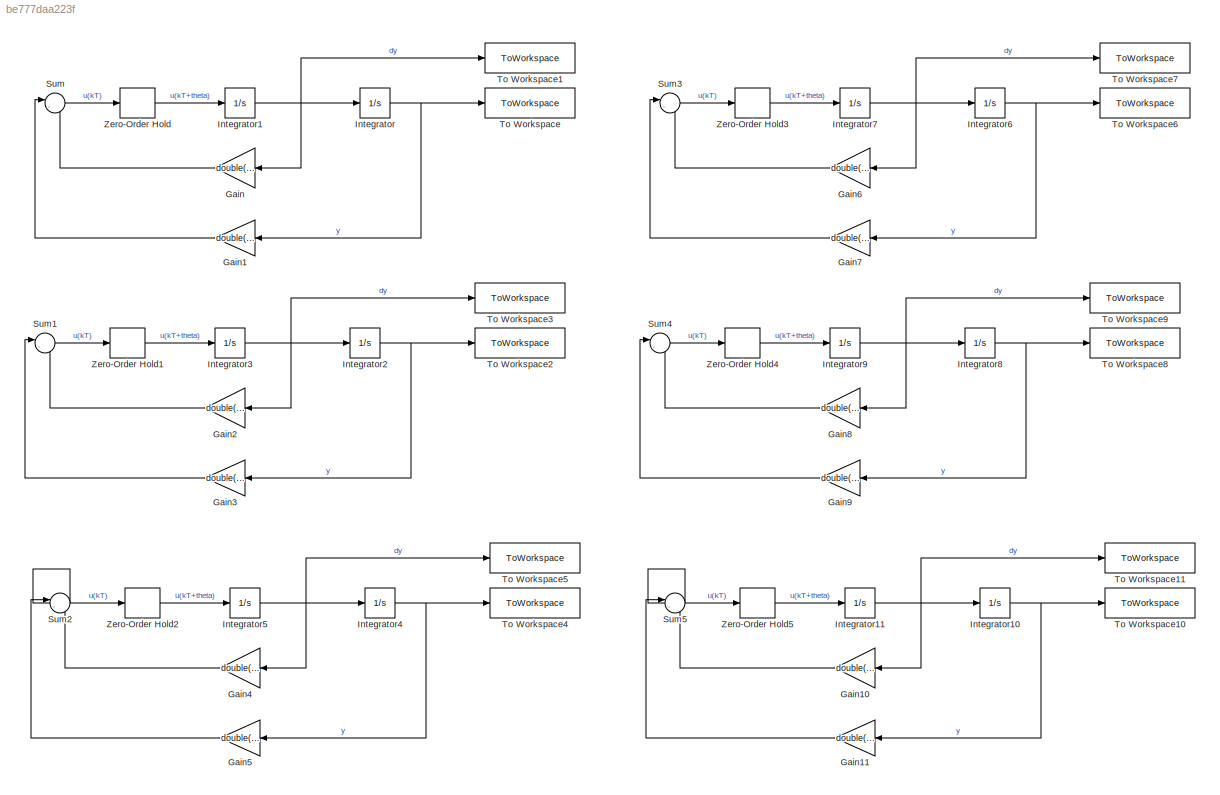
MODEL slx_be777daa223f
KIND model
CONFIG AbsTol = auto
CONFIG EnableMultiTasking = off
CONFIG FixedStep = auto
CONFIG MaxStep = auto
CONFIG MinStep = auto
CONFIG RelTol = 1e-3
CONFIG SampleTimeConstraint = Unconstrained
CONFIG SolverName = VariableStepAuto
CONFIG StartTime = 0.0
CONFIG StopTime = 10.0
BLOCK [Gain] Gain
  Gain = double(k_values.k2)
  NameLocation = top
BLOCK [Gain] Gain1
  Gain = double(k_values.k1)
  NameLocation = top
BLOCK [Gain] Gain10
  Gain = double(k_values.k2)
  NameLocation = top
BLOCK [Gain] Gain11
  Gain = double(k_values.k1)
  NameLocation = top
BLOCK [Gain] Gain2
  Gain = double(k_values.k2)
  NameLocation = top
BLOCK [Gain] Gain3
  Gain = double(k_values.k1)
  NameLocation = top
BLOCK [Gain] Gain4
  Gain = double(k_values.k2)
  NameLocation = top
BLOCK [Gain] Gain5
  Gain = double(k_values.k1)
  NameLocation = top
BLOCK [Gain] Gain6
  Gain = double(k_values.k2)
  NameLocation = top
BLOCK [Gain] Gain7
  Gain = double(k_values.k1)
  NameLocation = top
BLOCK [Gain] Gain8
  Gain = double(k_values.k2)
  NameLocation = top
BLOCK [Gain] Gain9
  Gain = double(k_values.k1)
  NameLocation = top
BLOCK [Integrator] Integrator
  InitialCondition = y(1)
BLOCK [Integrator] Integrator1
BLOCK [Integrator] Integrator10
  InitialCondition = y(6)
BLOCK [Integrator] Integrator11
BLOCK [Integrator] Integrator2
  InitialCondition = y(2)
BLOCK [Integrator] Integrator3
BLOCK [Integrator] Integrator4
  InitialCondition = y(3)
BLOCK [Integrator] Integrator5
BLOCK [Integrator] Integrator6
  InitialCondition = y(4)
BLOCK [Integrator] Integrator7
BLOCK [Integrator] Integrator8
  InitialCondition = y(5)
BLOCK [Integrator] Integrator9
BLOCK [Sum] Sum
  Inputs = |--
BLOCK [Sum] Sum1
  Inputs = |--
BLOCK [Sum] Sum2
  Inputs = |--
BLOCK [Sum] Sum3
  Inputs = |--
BLOCK [Sum] Sum4
  Inputs = |--
BLOCK [Sum] Sum5
  Inputs = |--
BLOCK [ToWorkspace] To Workspace
  FixptAsFi = on
  MaxDataPoints = inf
  SampleTime = -1
  SaveFormat = Timeseries
  VariableName = y1
BLOCK [ToWorkspace] To Workspace1
  FixptAsFi = on
  MaxDataPoints = inf
  SampleTime = -1
  SaveFormat = Timeseries
  VariableName = dy1
BLOCK [ToWorkspace] To Workspace10
  FixptAsFi = on
  MaxDataPoints = inf
  SampleTime = -1
  SaveFormat = Timeseries
  VariableName = y6
BLOCK [ToWorkspace] To Workspace11
  FixptAsFi = on
  MaxDataPoints = inf
  SampleTime = -1
  SaveFormat = Timeseries
  VariableName = dy6
BLOCK [ToWorkspace] To Workspace2
  FixptAsFi = on
  MaxDataPoints = inf
  SampleTime = -1
  SaveFormat = Timeseries
  VariableName = y2
BLOCK [ToWorkspace] To Workspace3
  FixptAsFi = on
  MaxDataPoints = inf
  SampleTime = -1
  SaveFormat = Timeseries
  VariableName = dy2
BLOCK [ToWorkspace] To Workspace4
  FixptAsFi = on
  MaxDataPoints = inf
  SampleTime = -1
  SaveFormat = Timeseries
  VariableName = y3
BLOCK [ToWorkspace] To Workspace5
  FixptAsFi = on
  MaxDataPoints = inf
  SampleTime = -1
  SaveFormat = Timeseries
  VariableName = dy3
BLOCK [ToWorkspace] To Workspace6
  FixptAsFi = on
  MaxDataPoints = inf
  SampleTime = -1
  SaveFormat = Timeseries
  VariableName = y4
BLOCK [ToWorkspace] To Workspace7
  FixptAsFi = on
  MaxDataPoints = inf
  SampleTime = -1
  SaveFormat = Timeseries
  VariableName = dy4
BLOCK [ToWorkspace] To Workspace8
  FixptAsFi = on
  MaxDataPoints = inf
  SampleTime = -1
  SaveFormat = Timeseries
  VariableName = y5
BLOCK [ToWorkspace] To Workspace9
  FixptAsFi = on
  MaxDataPoints = inf
  SampleTime = -1
  SaveFormat = Timeseries
  VariableName = dy5
BLOCK [ZeroOrderHold] Zero-Order Hold
  SampleTime = -1
BLOCK [ZeroOrderHold] Zero-Order Hold1
  SampleTime = -1
BLOCK [ZeroOrderHold] Zero-Order Hold2
  SampleTime = -1
BLOCK [ZeroOrderHold] Zero-Order Hold3
  SampleTime = -1
BLOCK [ZeroOrderHold] Zero-Order Hold4
  SampleTime = -1
BLOCK [ZeroOrderHold] Zero-Order Hold5
  SampleTime = -1
LINE Gain10:1 -> Sum5:2
LINE Gain11:1 -> Sum5:1
LINE Gain1:1 -> Sum:1
LINE Gain2:1 -> Sum1:2
LINE Gain3:1 -> Sum1:1
LINE Gain4:1 -> Sum2:2
LINE Gain5:1 -> Sum2:1
LINE Gain6:1 -> Sum3:2
LINE Gain7:1 -> Sum3:1
LINE Gain8:1 -> Sum4:2
LINE Gain9:1 -> Sum4:1
LINE Gain:1 -> Sum:2
NET Integrator10:1 -> Gain11:1, To Workspace10:1
NET Integrator11:1 -> Gain10:1, Integrator10:1, To Workspace11:1
NET Integrator1:1 -> Gain:1, Integrator:1, To Workspace1:1
NET Integrator2:1 -> Gain3:1, To Workspace2:1
NET Integrator3:1 -> Gain2:1, Integrator2:1, To Workspace3:1
NET Integrator4:1 -> Gain5:1, To Workspace4:1
NET Integrator5:1 -> Gain4:1, Integrator4:1, To Workspace5:1
NET Integrator6:1 -> Gain7:1, To Workspace6:1
NET Integrator7:1 -> Gain6:1, Integrator6:1, To Workspace7:1
NET Integrator8:1 -> Gain9:1, To Workspace8:1
NET Integrator9:1 -> Gain8:1, Integrator8:1, To Workspace9:1
NET Integrator:1 -> Gain1:1, To Workspace:1
LINE Sum1:1 -> Zero-Order Hold1:1
LINE Sum2:1 -> Zero-Order Hold2:1
LINE Sum3:1 -> Zero-Order Hold3:1
LINE Sum4:1 -> Zero-Order Hold4:1
LINE Sum5:1 -> Zero-Order Hold5:1
LINE Sum:1 -> Zero-Order Hold:1
LINE Zero-Order Hold1:1 -> Integrator3:1
LINE Zero-Order Hold2:1 -> Integrator5:1
LINE Zero-Order Hold3:1 -> Integrator7:1
LINE Zero-Order Hold4:1 -> Integrator9:1
LINE Zero-Order Hold5:1 -> Integrator11:1
LINE Zero-Order Hold:1 -> Integrator1:1
note: NET lines group one-source signal fan-out (src -> all destinations, sorted); 1:1 wires keep LINE
